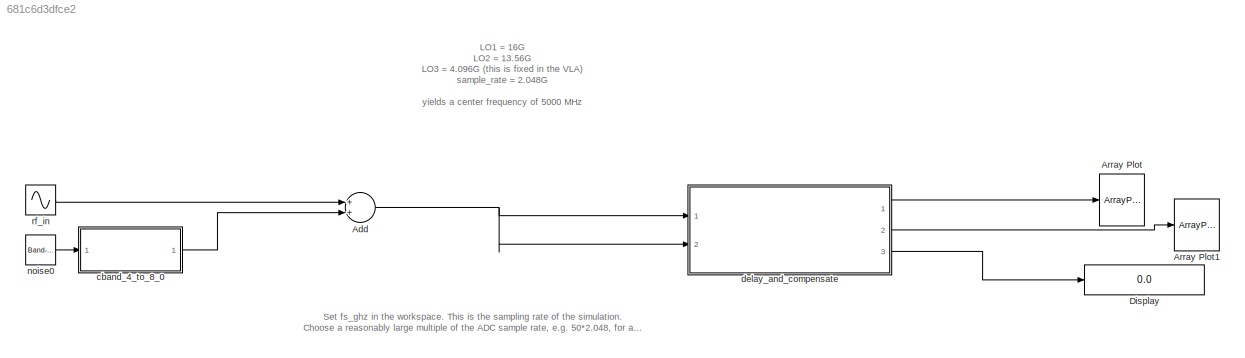
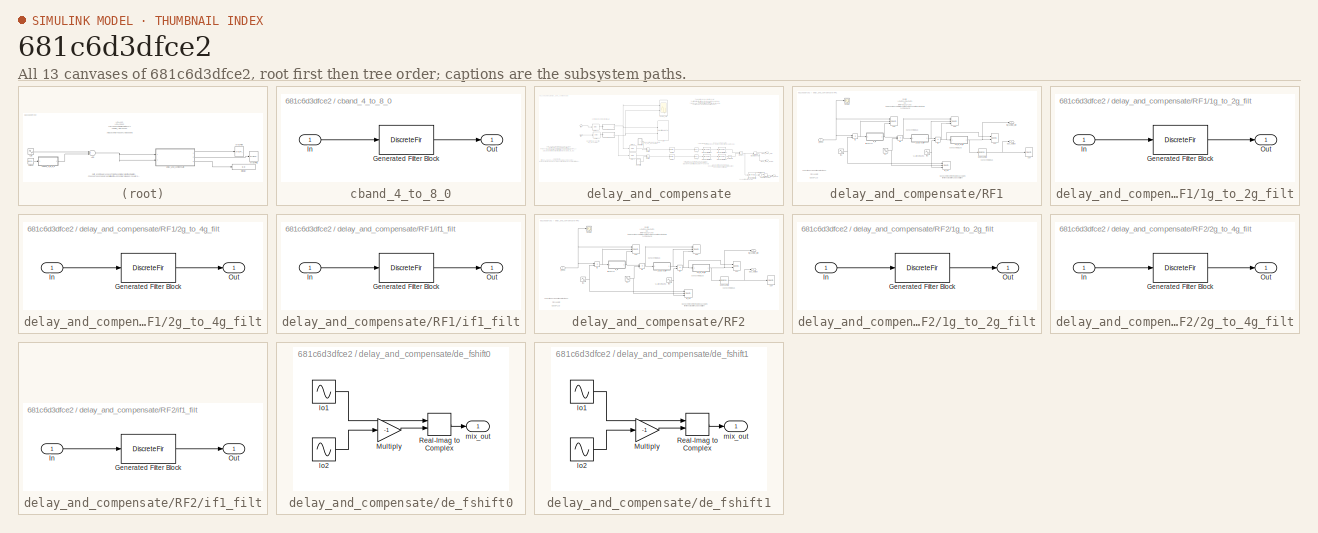
[diagram: thumbnail index - all 13 canvases of the model, root first then tree order]
MODEL slx_681c6d3dfce2
KIND model
CONFIG AbsTol = auto
CONFIG EnableMultiTasking = off
CONFIG FixedStep = auto
CONFIG MaxStep = auto
CONFIG MinStep = auto
CONFIG RelTol = 1e-3
CONFIG SampleTimeConstraint = Unconstrained
CONFIG Solver = VariableStepAuto
CONFIG SolverName = VariableStepAuto
CONFIG StartTime = 0.0
CONFIG StopTime = 500000 / (fs_ghz * 1e9)
BLOCK [Sum] Add
  InputSameDT = off
  OutDataTypeStr = Inherit: Inherit via internal rule
  Ports = [2, 1]
  SaturateOnIntegerOverflow = off
BLOCK [ArrayPlot] Array Plot
  Ports = [1]
  ScopeSpecificationString = dsp.scopes.ArrayPlotBlockSpecification('CurrentConfiguration', extmgr.ConfigurationSet(extmgr.Configuration('Core','General UI',true),extmgr.Configuration('Core','Source UI',true),extmgr.Configuration('Sources','WiredSimulink',true),extmgr.Configuration('Sources','File',false),extmgr.Configuration('Sources','Workspace',false),extmgr.Configuration('Sources','Streaming',false),extmgr.Configuration('...<+2307ch>
BLOCK [ArrayPlot] Array Plot1
  Ports = [1]
  ScopeSpecificationString = dsp.scopes.ArrayPlotBlockSpecification('CurrentConfiguration', extmgr.ConfigurationSet(extmgr.Configuration('Core','General UI',true),extmgr.Configuration('Core','Source UI',true),extmgr.Configuration('Sources','WiredSimulink',true),extmgr.Configuration('Sources','File',false),extmgr.Configuration('Sources','Workspace',false),extmgr.Configuration('Sources','Streaming',false),extmgr.Configuration('...<+2087ch>
BLOCK [Display] Display
  Decimation = 1
  Ports = [1]
BLOCK [SubSystem] cband_4_to_8_0
  CopyFcn = fdesignblkfcn(gcbh, {'CopyFcn'});
  DialogController = fdesignblkfcn
  InitFcn = fdesignblkfcn(gcbh, {'InitFcn'});
  Ports = [1, 1]
  RequestExecContextInheritance = off
  UserDataPersistent = on
BLOCK [DiscreteFir] cband_4_to_8_0/Generated Filter Block
  Coefficients = [-9.40094334225731145e-05 -6.57335329822327186e-05 1.32894792001724368e-05 0.000134559058517748424 0.000277936305882253612 0.000414699232132098247 0.000512636064975988365 0.000542480818344473047 0.000484608636541211375 0.000334635227065140138 0.000106521266150224518 -0.00016793806988651982 -0.000443730870127158567 -0.000670944573551014874 -0.000805375180787633121 -0.000819188075913799977 -0.000708...<+4321ch>
  InputPortMap = u0
  InputProcessing = Columns as channels (frame based)
  OutputPortMap = o0
  Ports = [1, 1]
  Tag = BlockMethodSubSystem
BLOCK [Inport] cband_4_to_8_0/In
  IconDisplay = Port number
BLOCK [Outport] cband_4_to_8_0/Out
  IconDisplay = Port number
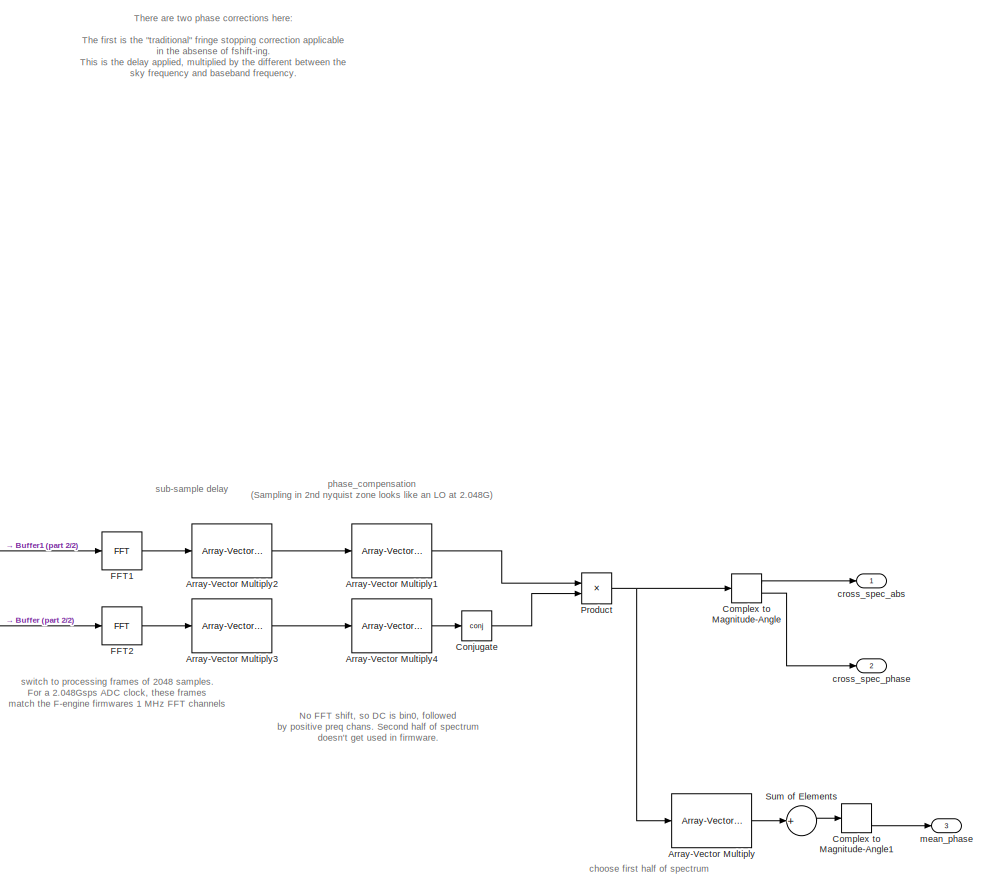
[diagram: delay_and_compensate - part 1/2, right side, full height]
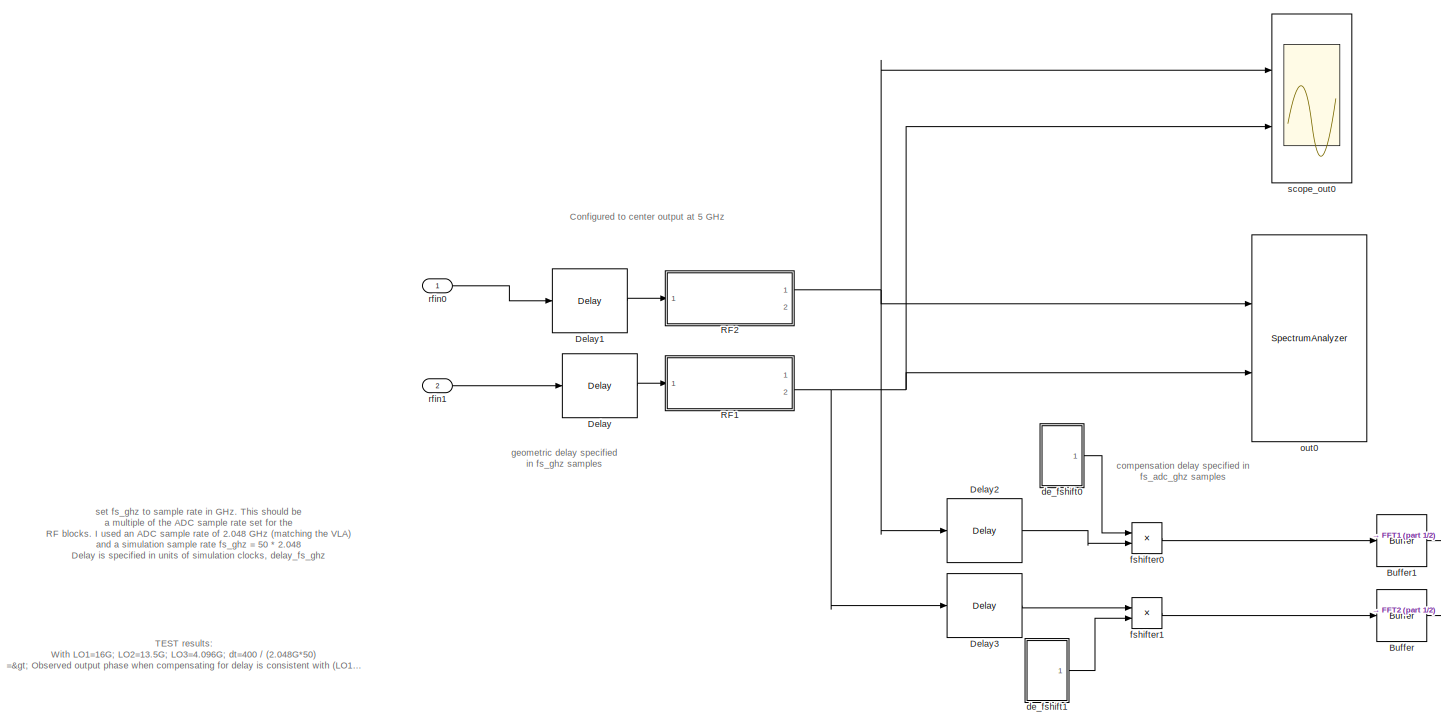
[diagram: delay_and_compensate - part 2/2, left side, full height]
BLOCK [SubSystem] delay_and_compensate
  Ports = [2, 3]
  RequestExecContextInheritance = off
BLOCK [Reference] delay_and_compensate/Array-Vector Multiply  REF=dspmtrx3/Array-Vector
Multiply
  Ports = [1, 1]
  SourceBlock = dspmtrx3/Array-Vector\nMultiply
  SourceProductBaseCode = DS
  SourceProductName = DSP System Toolbox
  SourceType = Array-Vector Multiply
BLOCK [Reference] delay_and_compensate/Array-Vector Multiply1  REF=dspmtrx3/Array-Vector
Multiply
  Ports = [1, 1]
  SourceBlock = dspmtrx3/Array-Vector\nMultiply
  SourceProductBaseCode = DS
  SourceProductName = DSP System Toolbox
  SourceType = Array-Vector Multiply
BLOCK [Reference] delay_and_compensate/Array-Vector Multiply2  REF=dspmtrx3/Array-Vector
Multiply
  Ports = [1, 1]
  SourceBlock = dspmtrx3/Array-Vector\nMultiply
  SourceProductBaseCode = DS
  SourceProductName = DSP System Toolbox
  SourceType = Array-Vector Multiply
BLOCK [Reference] delay_and_compensate/Array-Vector Multiply3  REF=dspmtrx3/Array-Vector
Multiply
  Ports = [1, 1]
  SourceBlock = dspmtrx3/Array-Vector\nMultiply
  SourceProductBaseCode = DS
  SourceProductName = DSP System Toolbox
  SourceType = Array-Vector Multiply
BLOCK [Reference] delay_and_compensate/Array-Vector Multiply4  REF=dspmtrx3/Array-Vector
Multiply
  Ports = [1, 1]
  SourceBlock = dspmtrx3/Array-Vector\nMultiply
  SourceProductBaseCode = DS
  SourceProductName = DSP System Toolbox
  SourceType = Array-Vector Multiply
BLOCK [Buffer] delay_and_compensate/Buffer
  N = 2048
  OutputFrames = off
BLOCK [Buffer] delay_and_compensate/Buffer1
  N = 2048
  OutputFrames = off
BLOCK [ComplexToMagnitudeAngle] delay_and_compensate/Complex to Magnitude-Angle
  Ports = [1, 2]
BLOCK [ComplexToMagnitudeAngle] delay_and_compensate/Complex to Magnitude-Angle1
  Ports = [1, 2]
BLOCK [Math] delay_and_compensate/Conjugate
  Operator = conj
  Ports = [1, 1]
  RndMeth = Zero
BLOCK [Delay] delay_and_compensate/Delay
  DelayLength = rf_delay1_fs_ghz
  InitialCondition = 0
  InputPortMap = u0
  Ports = [1, 1]
BLOCK [Delay] delay_and_compensate/Delay1
  DelayLength = rf_delay0_fs_ghz
  InitialCondition = 0
  InputPortMap = u0
  Ports = [1, 1]
BLOCK [Delay] delay_and_compensate/Delay2
  DelayLength = coarse_delay0
  InitialCondition = 0
  InputPortMap = u0
  Ports = [1, 1]
BLOCK [Delay] delay_and_compensate/Delay3
  DelayLength = coarse_delay1
  InitialCondition = 0
  InputPortMap = u0
  Ports = [1, 1]
BLOCK [Reference] delay_and_compensate/FFT1  REF=dspxfrm3/FFT
  Ports = [1, 1]
  SourceBlock = dspxfrm3/FFT
  SourceProductBaseCode = DS
  SourceProductName = DSP System Toolbox
  SourceType = FFT
BLOCK [Reference] delay_and_compensate/FFT2  REF=dspxfrm3/FFT
  Ports = [1, 1]
  SourceBlock = dspxfrm3/FFT
  SourceProductBaseCode = DS
  SourceProductName = DSP System Toolbox
  SourceType = FFT
BLOCK [Product] delay_and_compensate/Product
  InputSameDT = off
  OutDataTypeStr = Inherit: Inherit via internal rule
  Ports = [2, 1]
  RndMeth = Floor
  SaturateOnIntegerOverflow = off
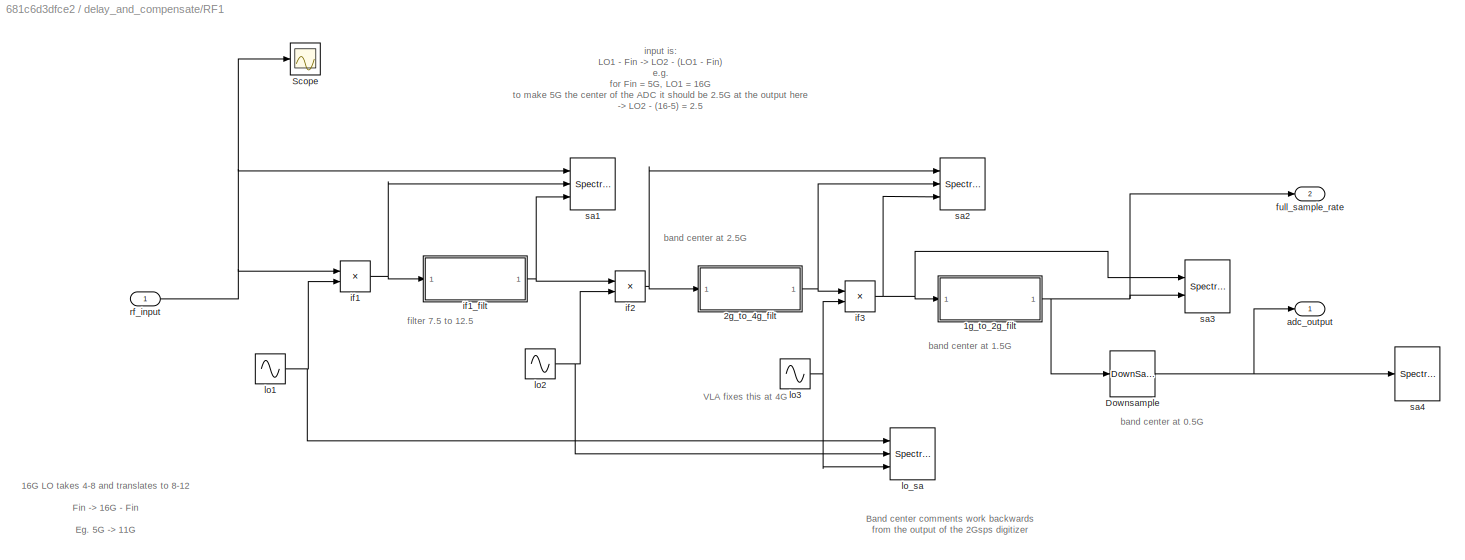
BLOCK [SubSystem] delay_and_compensate/RF1
  Ports = [1, 2]
  RequestExecContextInheritance = off
BLOCK [SubSystem] delay_and_compensate/RF1/1g_to_2g_filt
  CopyFcn = fdesignblkfcn(gcbh, {'CopyFcn'});
  DialogController = fdesignblkfcn
  InitFcn = fdesignblkfcn(gcbh, {'InitFcn'});
  Ports = [1, 1]
  RequestExecContextInheritance = off
  UserDataPersistent = on
BLOCK [DiscreteFir] delay_and_compensate/RF1/1g_to_2g_filt/Generated Filter Block
  Coefficients = [1.01704780809032204e-05 8.00513267945117663e-06 5.63585570426750819e-06 3.08357437286688761e-06 3.7215072795178805e-07 -2.47188488010559091e-06 -5.41963823333738916e-06 -8.44018986497744443e-06 -1.15009636491456078e-05 -1.45681207425512571e-05 -1.76069739067568088e-05 -2.05824169501533862e-05 -2.34593638064728185e-05 -2.62031916145401389e-05 -2.87801820842337675e-05 -3.11579554275093182e-05 -3.33...<+60115ch>
  InputPortMap = u0
  InputProcessing = Columns as channels (frame based)
  OutputPortMap = o0
  Ports = [1, 1]
  Tag = BlockMethodSubSystem
BLOCK [Inport] delay_and_compensate/RF1/1g_to_2g_filt/In
  IconDisplay = Port number
BLOCK [Outport] delay_and_compensate/RF1/1g_to_2g_filt/Out
  IconDisplay = Port number
BLOCK [SubSystem] delay_and_compensate/RF1/2g_to_4g_filt
  CopyFcn = fdesignblkfcn(gcbh, {'CopyFcn'});
  DialogController = fdesignblkfcn
  InitFcn = fdesignblkfcn(gcbh, {'InitFcn'});
  Ports = [1, 1]
  RequestExecContextInheritance = off
  UserDataPersistent = on
BLOCK [DiscreteFir] delay_and_compensate/RF1/2g_to_4g_filt/Generated Filter Block
  Coefficients = [2.93722382866788096e-05 3.41459391652129034e-05 3.77128110868576443e-05 3.99224737036247014e-05 4.06853079430514713e-05 3.99767906724050358e-05 3.78385630665936822e-05 3.43761762884411585e-05 2.97536321530244167e-05 2.41850044819596572e-05 1.79235799255994288e-05 1.12490869892622225e-05 4.4536819092569802e-06 -2.17257546056165917e-06 -8.35599694025994471e-06 -1.38525483000206094e-05 -1.8459448475...<+59953ch>
  InputPortMap = u0
  InputProcessing = Columns as channels (frame based)
  OutputPortMap = o0
  Ports = [1, 1]
  Tag = BlockMethodSubSystem
BLOCK [Inport] delay_and_compensate/RF1/2g_to_4g_filt/In
  IconDisplay = Port number
BLOCK [Outport] delay_and_compensate/RF1/2g_to_4g_filt/Out
  IconDisplay = Port number
BLOCK [DownSample] delay_and_compensate/RF1/Downsample
  InputProcessing = Elements as channels (sample based)
  N = fs_ghz/adc_fs_ghz
  RateOptions = Allow multirate processing
BLOCK [Scope] delay_and_compensate/RF1/Scope
  Floating = off
  NumInputPorts = 1
  Ports = [1]
  ScopeSpecificationString = Simulink.scopes.TimeScopeBlockCfg('CurrentConfiguration', extmgr.ConfigurationSet(extmgr.Configuration('Core','General UI',true),extmgr.Configuration('Core','Source UI',true),extmgr.Configuration('Sources','WiredSimulink',true,'DataLoggingLimitDataPoints',true),extmgr.Configuration('Visuals','Time Domain',true,'SerializedDisplays',{struct('MinYLimReal','-364.50522','MaxYLimReal','370.61907','YLabe...<+1476ch>
BLOCK [Outport] delay_and_compensate/RF1/adc_output
  IconDisplay = Port number
BLOCK [Outport] delay_and_compensate/RF1/full_sample_rate
  IconDisplay = Port number
  Port = 2
BLOCK [Product] delay_and_compensate/RF1/if1
  InputSameDT = off
  OutDataTypeStr = Inherit: Inherit via internal rule
  Ports = [2, 1]
  RndMeth = Floor
  SaturateOnIntegerOverflow = off
BLOCK [SubSystem] delay_and_compensate/RF1/if1_filt
  CopyFcn = fdesignblkfcn(gcbh, {'CopyFcn'});
  DialogController = fdesignblkfcn
  InitFcn = fdesignblkfcn(gcbh, {'InitFcn'});
  Ports = [1, 1]
  RequestExecContextInheritance = off
  UserDataPersistent = on
BLOCK [DiscreteFir] delay_and_compensate/RF1/if1_filt/Generated Filter Block
  Coefficients = [3.4793427262309392e-05 5.44930009021886444e-05 7.67230161640516311e-06 -4.90795005220614759e-05 -5.00251028970550559e-05 3.70846460305349548e-05 0.000185516672775070751 0.000317032928598762903 0.000341105037848429924 0.000206892118281761336 -5.9982989554209261e-05 -0.00035835848219169399 -0.000554209791067096871 -0.000546424234637173838 -0.000322177302977984053 2.93739649481302108e-05 0.000356381...<+5519ch>
  InputPortMap = u0
  InputProcessing = Columns as channels (frame based)
  OutputPortMap = o0
  Ports = [1, 1]
  Tag = BlockMethodSubSystem
BLOCK [Inport] delay_and_compensate/RF1/if1_filt/In
  IconDisplay = Port number
BLOCK [Outport] delay_and_compensate/RF1/if1_filt/Out
  IconDisplay = Port number
BLOCK [Product] delay_and_compensate/RF1/if2
  InputSameDT = off
  OutDataTypeStr = Inherit: Inherit via internal rule
  Ports = [2, 1]
  RndMeth = Floor
  SaturateOnIntegerOverflow = off
BLOCK [Product] delay_and_compensate/RF1/if3
  InputSameDT = off
  OutDataTypeStr = Inherit: Inherit via internal rule
  Ports = [2, 1]
  RndMeth = Floor
  SaturateOnIntegerOverflow = off
BLOCK [Sin] delay_and_compensate/RF1/lo1
  Frequency = lo1_ghz * 1e9 * 2 * pi
  Ports = [0, 1]
  SampleTime = 1/(fs_ghz * 1e9)
BLOCK [Sin] delay_and_compensate/RF1/lo2
  Frequency = (lo2_ghz*1e9 + fshift_hz) * 2 * pi
  Ports = [0, 1]
  SampleTime = 1/(fs_ghz*1e9)
BLOCK [Sin] delay_and_compensate/RF1/lo3
  Frequency = (lo3_ghz * 1e9) * 2 * pi
  Ports = [0, 1]
  SampleTime = 1/(fs_ghz * 1e9)
BLOCK [SpectrumAnalyzer] delay_and_compensate/RF1/lo_sa
  NumInputPorts = 3
  Ports = [3]
  ScopeSpecificationString = spbscopes.SpectrumAnalyzerBlockCfg('CurrentConfiguration', extmgr.ConfigurationSet(extmgr.Configuration('Core','General UI',true),extmgr.Configuration('Core','Source UI',true),extmgr.Configuration('Sources','WiredSimulink',true),extmgr.Configuration('Visuals','Spectrum',true,'AxesProperties',struct('Color',{[0 0 0],[0 0 0]},'XColor',{[0.686274509803922 0.686274509803922 0.686274509803922],[0.68627...<+2114ch>
BLOCK [Inport] delay_and_compensate/RF1/rf_input
  IconDisplay = Port number
BLOCK [SpectrumAnalyzer] delay_and_compensate/RF1/sa1
  NumInputPorts = 3
  Ports = [3]
  ScopeSpecificationString = spbscopes.SpectrumAnalyzerBlockCfg('CurrentConfiguration', extmgr.ConfigurationSet(extmgr.Configuration('Core','General UI',true),extmgr.Configuration('Core','Source UI',true),extmgr.Configuration('Sources','WiredSimulink',true),extmgr.Configuration('Visuals','Spectrum',true,'AxesProperties',struct('Color',{[0 0 0],[0 0 0]},'XColor',{[0.686274509803922 0.686274509803922 0.686274509803922],[0.68627...<+2627ch>
BLOCK [SpectrumAnalyzer] delay_and_compensate/RF1/sa2
  NumInputPorts = 3
  Ports = [3]
  ScopeSpecificationString = spbscopes.SpectrumAnalyzerBlockCfg('CurrentConfiguration', extmgr.ConfigurationSet(extmgr.Configuration('Core','General UI',true),extmgr.Configuration('Core','Source UI',true),extmgr.Configuration('Sources','WiredSimulink',true),extmgr.Configuration('Visuals','Spectrum',true,'AxesProperties',struct('Color',{[0 0 0],[0 0 0]},'XColor',{[0.686274509803922 0.686274509803922 0.686274509803922],[0.68627...<+3116ch>
BLOCK [SpectrumAnalyzer] delay_and_compensate/RF1/sa3
  NumInputPorts = 2
  Ports = [2]
  ScopeSpecificationString = spbscopes.SpectrumAnalyzerBlockCfg('CurrentConfiguration', extmgr.ConfigurationSet(extmgr.Configuration('Core','General UI',true),extmgr.Configuration('Core','Source UI',true),extmgr.Configuration('Sources','WiredSimulink',true),extmgr.Configuration('Visuals','Spectrum',true,'AxesProperties',struct('Color',{[0 0 0],[0 0 0]},'XColor',{[0.686274509803922 0.686274509803922 0.686274509803922],[0.68627...<+2526ch>
BLOCK [SpectrumAnalyzer] delay_and_compensate/RF1/sa4
  Ports = [1]
  ScopeSpecificationString = spbscopes.SpectrumAnalyzerBlockCfg('CurrentConfiguration', extmgr.ConfigurationSet(extmgr.Configuration('Core','General UI',true),extmgr.Configuration('Core','Source UI',true),extmgr.Configuration('Sources','WiredSimulink',true),extmgr.Configuration('Visuals','Spectrum',true,'AxesProperties',struct('Color',{[0 0 0],[0 0 0]},'XColor',{[0.686274509803922 0.686274509803922 0.686274509803922],[0.68627...<+2414ch>
BLOCK [SubSystem] delay_and_compensate/RF2
  Ports = [1, 2]
  RequestExecContextInheritance = off
BLOCK [SubSystem] delay_and_compensate/RF2/1g_to_2g_filt
  CopyFcn = fdesignblkfcn(gcbh, {'CopyFcn'});
  DialogController = fdesignblkfcn
  InitFcn = fdesignblkfcn(gcbh, {'InitFcn'});
  Ports = [1, 1]
  RequestExecContextInheritance = off
  UserDataPersistent = on
BLOCK [DiscreteFir] delay_and_compensate/RF2/1g_to_2g_filt/Generated Filter Block
  Coefficients = [1.01704780809032204e-05 8.00513267945117663e-06 5.63585570426750819e-06 3.08357437286688761e-06 3.7215072795178805e-07 -2.47188488010559091e-06 -5.41963823333738916e-06 -8.44018986497744443e-06 -1.15009636491456078e-05 -1.45681207425512571e-05 -1.76069739067568088e-05 -2.05824169501533862e-05 -2.34593638064728185e-05 -2.62031916145401389e-05 -2.87801820842337675e-05 -3.11579554275093182e-05 -3.33...<+60115ch>
  InputPortMap = u0
  InputProcessing = Columns as channels (frame based)
  OutputPortMap = o0
  Ports = [1, 1]
  Tag = BlockMethodSubSystem
BLOCK [Inport] delay_and_compensate/RF2/1g_to_2g_filt/In
  IconDisplay = Port number
BLOCK [Outport] delay_and_compensate/RF2/1g_to_2g_filt/Out
  IconDisplay = Port number
BLOCK [SubSystem] delay_and_compensate/RF2/2g_to_4g_filt
  CopyFcn = fdesignblkfcn(gcbh, {'CopyFcn'});
  DialogController = fdesignblkfcn
  InitFcn = fdesignblkfcn(gcbh, {'InitFcn'});
  Ports = [1, 1]
  RequestExecContextInheritance = off
  UserDataPersistent = on
BLOCK [DiscreteFir] delay_and_compensate/RF2/2g_to_4g_filt/Generated Filter Block
  Coefficients = [2.93722382866788096e-05 3.41459391652129034e-05 3.77128110868576443e-05 3.99224737036247014e-05 4.06853079430514713e-05 3.99767906724050358e-05 3.78385630665936822e-05 3.43761762884411585e-05 2.97536321530244167e-05 2.41850044819596572e-05 1.79235799255994288e-05 1.12490869892622225e-05 4.4536819092569802e-06 -2.17257546056165917e-06 -8.35599694025994471e-06 -1.38525483000206094e-05 -1.8459448475...<+59953ch>
  InputPortMap = u0
  InputProcessing = Columns as channels (frame based)
  OutputPortMap = o0
  Ports = [1, 1]
  Tag = BlockMethodSubSystem
BLOCK [Inport] delay_and_compensate/RF2/2g_to_4g_filt/In
  IconDisplay = Port number
BLOCK [Outport] delay_and_compensate/RF2/2g_to_4g_filt/Out
  IconDisplay = Port number
BLOCK [DownSample] delay_and_compensate/RF2/Downsample
  InputProcessing = Elements as channels (sample based)
  N = fs_ghz/adc_fs_ghz
  RateOptions = Allow multirate processing
BLOCK [Scope] delay_and_compensate/RF2/Scope
  Floating = off
  NumInputPorts = 1
  Ports = [1]
  ScopeSpecificationString = Simulink.scopes.TimeScopeBlockCfg('CurrentConfiguration', extmgr.ConfigurationSet(extmgr.Configuration('Core','General UI',true),extmgr.Configuration('Core','Source UI',true),extmgr.Configuration('Sources','WiredSimulink',true,'DataLoggingLimitDataPoints',true),extmgr.Configuration('Visuals','Time Domain',true,'SerializedDisplays',{struct('MinYLimReal','-364.50522','MaxYLimReal','370.61907','YLabe...<+1476ch>
BLOCK [Outport] delay_and_compensate/RF2/adc_output
  IconDisplay = Port number
BLOCK [Outport] delay_and_compensate/RF2/full_sample_rate
  IconDisplay = Port number
  Port = 2
BLOCK [Product] delay_and_compensate/RF2/if1
  InputSameDT = off
  OutDataTypeStr = Inherit: Inherit via internal rule
  Ports = [2, 1]
  RndMeth = Floor
  SaturateOnIntegerOverflow = off
BLOCK [SubSystem] delay_and_compensate/RF2/if1_filt
  CopyFcn = fdesignblkfcn(gcbh, {'CopyFcn'});
  DialogController = fdesignblkfcn
  InitFcn = fdesignblkfcn(gcbh, {'InitFcn'});
  Ports = [1, 1]
  RequestExecContextInheritance = off
  UserDataPersistent = on
BLOCK [DiscreteFir] delay_and_compensate/RF2/if1_filt/Generated Filter Block
  Coefficients = [3.4793427262309392e-05 5.44930009021886444e-05 7.67230161640516311e-06 -4.90795005220614759e-05 -5.00251028970550559e-05 3.70846460305349548e-05 0.000185516672775070751 0.000317032928598762903 0.000341105037848429924 0.000206892118281761336 -5.9982989554209261e-05 -0.00035835848219169399 -0.000554209791067096871 -0.000546424234637173838 -0.000322177302977984053 2.93739649481302108e-05 0.000356381...<+5519ch>
  InputPortMap = u0
  InputProcessing = Columns as channels (frame based)
  OutputPortMap = o0
  Ports = [1, 1]
  Tag = BlockMethodSubSystem
BLOCK [Inport] delay_and_compensate/RF2/if1_filt/In
  IconDisplay = Port number
BLOCK [Outport] delay_and_compensate/RF2/if1_filt/Out
  IconDisplay = Port number
BLOCK [Product] delay_and_compensate/RF2/if2
  InputSameDT = off
  OutDataTypeStr = Inherit: Inherit via internal rule
  Ports = [2, 1]
  RndMeth = Floor
  SaturateOnIntegerOverflow = off
BLOCK [Product] delay_and_compensate/RF2/if3
  InputSameDT = off
  OutDataTypeStr = Inherit: Inherit via internal rule
  Ports = [2, 1]
  RndMeth = Floor
  SaturateOnIntegerOverflow = off
BLOCK [Sin] delay_and_compensate/RF2/lo1
  Frequency = lo1_ghz * 1e9 * 2 * pi
  Ports = [0, 1]
  SampleTime = 1/(fs_ghz * 1e9)
BLOCK [Sin] delay_and_compensate/RF2/lo2
  Frequency = (lo2_ghz*1e9 + fshift_hz) * 2 * pi
  Ports = [0, 1]
  SampleTime = 1/(fs_ghz*1e9)
BLOCK [Sin] delay_and_compensate/RF2/lo3
  Frequency = (lo3_ghz * 1e9) * 2 * pi
  Ports = [0, 1]
  SampleTime = 1/(fs_ghz * 1e9)
BLOCK [SpectrumAnalyzer] delay_and_compensate/RF2/lo_sa
  NumInputPorts = 3
  Ports = [3]
  ScopeSpecificationString = spbscopes.SpectrumAnalyzerBlockCfg('CurrentConfiguration', extmgr.ConfigurationSet(extmgr.Configuration('Core','General UI',true),extmgr.Configuration('Core','Source UI',true),extmgr.Configuration('Sources','WiredSimulink',true),extmgr.Configuration('Visuals','Spectrum',true,'AxesProperties',struct('Color',{[0 0 0],[0 0 0]},'XColor',{[0.686274509803922 0.686274509803922 0.686274509803922],[0.68627...<+2114ch>
BLOCK [Inport] delay_and_compensate/RF2/rf_input
  IconDisplay = Port number
BLOCK [SpectrumAnalyzer] delay_and_compensate/RF2/sa1
  NumInputPorts = 3
  Ports = [3]
  ScopeSpecificationString = spbscopes.SpectrumAnalyzerBlockCfg('CurrentConfiguration', extmgr.ConfigurationSet(extmgr.Configuration('Core','General UI',true),extmgr.Configuration('Core','Source UI',true),extmgr.Configuration('Sources','WiredSimulink',true),extmgr.Configuration('Visuals','Spectrum',true,'AxesProperties',struct('Color',{[0 0 0],[0 0 0]},'XColor',{[0.686274509803922 0.686274509803922 0.686274509803922],[0.68627...<+2627ch>
BLOCK [SpectrumAnalyzer] delay_and_compensate/RF2/sa2
  NumInputPorts = 3
  Ports = [3]
  ScopeSpecificationString = spbscopes.SpectrumAnalyzerBlockCfg('CurrentConfiguration', extmgr.ConfigurationSet(extmgr.Configuration('Core','General UI',true),extmgr.Configuration('Core','Source UI',true),extmgr.Configuration('Sources','WiredSimulink',true),extmgr.Configuration('Visuals','Spectrum',true,'AxesProperties',struct('Color',{[0 0 0],[0 0 0]},'XColor',{[0.686274509803922 0.686274509803922 0.686274509803922],[0.68627...<+3116ch>
BLOCK [SpectrumAnalyzer] delay_and_compensate/RF2/sa3
  NumInputPorts = 2
  Ports = [2]
  ScopeSpecificationString = spbscopes.SpectrumAnalyzerBlockCfg('CurrentConfiguration', extmgr.ConfigurationSet(extmgr.Configuration('Core','General UI',true),extmgr.Configuration('Core','Source UI',true),extmgr.Configuration('Sources','WiredSimulink',true),extmgr.Configuration('Visuals','Spectrum',true,'AxesProperties',struct('Color',{[0 0 0],[0 0 0]},'XColor',{[0.686274509803922 0.686274509803922 0.686274509803922],[0.68627...<+2526ch>
BLOCK [SpectrumAnalyzer] delay_and_compensate/RF2/sa4
  Ports = [1]
  ScopeSpecificationString = spbscopes.SpectrumAnalyzerBlockCfg('CurrentConfiguration', extmgr.ConfigurationSet(extmgr.Configuration('Core','General UI',true),extmgr.Configuration('Core','Source UI',true),extmgr.Configuration('Sources','WiredSimulink',true),extmgr.Configuration('Visuals','Spectrum',true,'AxesProperties',struct('Color',{[0 0 0],[0 0 0]},'XColor',{[0.686274509803922 0.686274509803922 0.686274509803922],[0.68627...<+2414ch>
BLOCK [Sum] delay_and_compensate/Sum of Elements
  InputSameDT = off
  Inputs = +
  OutDataTypeStr = Inherit: Inherit via internal rule
  Ports = [1, 1]
  SaturateOnIntegerOverflow = off
BLOCK [Outport] delay_and_compensate/cross_spec_abs
  IconDisplay = Port number
BLOCK [Outport] delay_and_compensate/cross_spec_phase
  IconDisplay = Port number
  Port = 2
BLOCK [SubSystem] delay_and_compensate/de_fshift0
  Ports = [0, 1]
  RequestExecContextInheritance = off
BLOCK [Gain] delay_and_compensate/de_fshift0/Multiply
  Gain = -1
  OutDataTypeStr = Inherit: Inherit via internal rule
  ParamDataTypeStr = Inherit: Inherit via internal rule
  SaturateOnIntegerOverflow = off
BLOCK [RealImagToComplex] delay_and_compensate/de_fshift0/Real-Imag to Complex
  Ports = [2, 1]
BLOCK [Sin] delay_and_compensate/de_fshift0/lo1
  Frequency = ( fshift_hz) * 2 * pi
  Phase = pi/2
  Ports = [0, 1]
  SampleTime = 1/(adc_ghz*1e9)
BLOCK [Sin] delay_and_compensate/de_fshift0/lo2
  Frequency = ( fshift_hz) * 2 * pi
  Ports = [0, 1]
  SampleTime = 1/(adc_ghz*1e9)
BLOCK [Outport] delay_and_compensate/de_fshift0/mix_out
  IconDisplay = Port number
BLOCK [SubSystem] delay_and_compensate/de_fshift1
  Ports = [0, 1]
  RequestExecContextInheritance = off
BLOCK [Gain] delay_and_compensate/de_fshift1/Multiply
  Gain = -1
  OutDataTypeStr = Inherit: Inherit via internal rule
  ParamDataTypeStr = Inherit: Inherit via internal rule
  SaturateOnIntegerOverflow = off
BLOCK [RealImagToComplex] delay_and_compensate/de_fshift1/Real-Imag to Complex
  Ports = [2, 1]
BLOCK [Sin] delay_and_compensate/de_fshift1/lo1
  Frequency = ( fshift_hz) * 2 * pi
  Phase = pi/2
  Ports = [0, 1]
  SampleTime = 1/(adc_ghz*1e9)
BLOCK [Sin] delay_and_compensate/de_fshift1/lo2
  Frequency = ( fshift_hz) * 2 * pi
  Ports = [0, 1]
  SampleTime = 1/(adc_ghz*1e9)
BLOCK [Outport] delay_and_compensate/de_fshift1/mix_out
  IconDisplay = Port number
BLOCK [Product] delay_and_compensate/fshifter0
  InputSameDT = off
  OutDataTypeStr = Inherit: Inherit via internal rule
  Ports = [2, 1]
  RndMeth = Floor
  SaturateOnIntegerOverflow = off
BLOCK [Product] delay_and_compensate/fshifter1
  InputSameDT = off
  OutDataTypeStr = Inherit: Inherit via internal rule
  Ports = [2, 1]
  RndMeth = Floor
  SaturateOnIntegerOverflow = off
BLOCK [Outport] delay_and_compensate/mean_phase
  IconDisplay = Port number
  Port = 3
BLOCK [SpectrumAnalyzer] delay_and_compensate/out0
  NumInputPorts = 2
  Ports = [2]
  ScopeSpecificationString = spbscopes.SpectrumAnalyzerBlockCfg('CurrentConfiguration', extmgr.ConfigurationSet(extmgr.Configuration('Core','General UI',true),extmgr.Configuration('Core','Source UI',true),extmgr.Configuration('Sources','WiredSimulink',true),extmgr.Configuration('Sources','File',false),extmgr.Configuration('Sources','Workspace',false),extmgr.Configuration('Sources','Streaming',false),extmgr.Configuration('Sour...<+3215ch>
BLOCK [Inport] delay_and_compensate/rfin0
  IconDisplay = Port number
BLOCK [Inport] delay_and_compensate/rfin1
  IconDisplay = Port number
  Port = 2
BLOCK [Scope] delay_and_compensate/scope_out0
  Commented = on
  Floating = off
  NumInputPorts = 2
  Ports = [2]
  ScopeSpecificationString = Simulink.scopes.TimeScopeBlockCfg('CurrentConfiguration', extmgr.ConfigurationSet(extmgr.Configuration('Core','General UI',true),extmgr.Configuration('Core','Source UI',true),extmgr.Configuration('Sources','WiredSimulink',true,'DataLoggingVariableName','ScopeData1','DataLoggingLimitDataPoints',true,'DataLoggingMaxPoints','2000'),extmgr.Configuration('Visuals','Time Domain',true,'SerializedDisplays...<+1509ch>
BLOCK [Reference] noise0  REF=simulink/Sources/Band-Limited
White Noise
  Ports = [0, 1]
  SourceBlock = simulink/Sources/Band-Limited\nWhite Noise
  SourceProductBaseCode = SL
  SourceProductName = Simulink
  SourceType = Band-Limited White Noise.
BLOCK [Sin] rf_in
  Amplitude = 100
  Frequency = 5e9 * 2 * pi
  Ports = [0, 1]
  SampleTime = 1/(fs_ghz*1e9)
ANNOTATION (root): LO1 = 16G LO2 = 13.56G LO3 = 4.096G (this is fixed in the VLA) sample_rate = 2.048G yields a center frequency of 5000 MHz
ANNOTATION (root): Set fs_ghz in the workspace. This is the sampling rate of the simulation. Choose a reasonably large multiple of the ADC sample rate, e.g. 50*2.048, for a sample rate of 2.048 Gsps
ANNOTATION delay_and_compensate: set fs_ghz to sample rate in GHz. This should be a multiple of the ADC sample rate set for the RF blocks. I used an ADC sample rate of 2.048 GHz (matching the VLA) and a simulation sample rate fs_ghz = 50 * 2.048 Delay is specified in units of simulation clocks, delay_fs_ghz
ANNOTATION delay_and_compensate: TEST results: With LO1=16G; LO2=13.5G; LO3=4.096G; dt=400 / (2.048G*50) => Observed output phase when compensating for delay is consistent with (LO1-LO2+LO3)*dt
ANNOTATION delay_and_compensate: Configured to center output at 5 GHz
ANNOTATION delay_and_compensate: No FFT shift, so DC is bin0, followed by positive preq chans. Second half of spectrum doesn't get used in firmware.
ANNOTATION delay_and_compensate: There are two phase corrections here: The first is the "traditional" fringe stopping correction applicable in the absense of fshift-ing. This is the delay applied, multiplied by the different between the sky frequency and baseband frequency. I.e. 2*pi*df*delay = 2*pi*(-LO1 + LO2 - LO3 +2.048G)*delay The last term in the LO expansion represents the fact that we sample in the second Nyquist zone, wh...<+948ch>
ANNOTATION delay_and_compensate: choose first half of spectrum
ANNOTATION delay_and_compensate: compensation delay specified in fs_adc_ghz samples
ANNOTATION delay_and_compensate: geometric delay specified in fs_ghz samples
ANNOTATION delay_and_compensate: phase_compensation (Sampling in 2nd nyquist zone looks like an LO at 2.048G)
ANNOTATION delay_and_compensate: sub-sample delay
ANNOTATION delay_and_compensate: switch to processing frames of 2048 samples. For a 2.048Gsps ADC clock, these frames match the F-engine firmwares 1 MHz FFT channels
ANNOTATION delay_and_compensate/RF1: 16G LO takes 4-8 and translates to 8-12 Fin -> 16G - Fin Eg. 5G -> 11G
ANNOTATION delay_and_compensate/RF1: Band center comments work backwards from the output of the 2Gsps digitizer
ANNOTATION delay_and_compensate/RF1: VLA fixes this at 4G
ANNOTATION delay_and_compensate/RF1: band center at 0.5G
ANNOTATION delay_and_compensate/RF1: band center at 1.5G
ANNOTATION delay_and_compensate/RF1: band center at 2.5G
ANNOTATION delay_and_compensate/RF1: filter 7.5 to 12.5
ANNOTATION delay_and_compensate/RF1: input is: LO1 - Fin -> LO2 - (LO1 - Fin) e.g. for Fin = 5G, LO1 = 16G to make 5G the center of the ADC it should be 2.5G at the output here -> LO2 - (16-5) = 2.5 -> LO2 = 2.5 + 11 = 13.5
ANNOTATION delay_and_compensate/RF2: 16G LO takes 4-8 and translates to 8-12 Fin -> 16G - Fin Eg. 5G -> 11G
ANNOTATION delay_and_compensate/RF2: Band center comments work backwards from the output of the 2Gsps digitizer
ANNOTATION delay_and_compensate/RF2: VLA fixes this at 4G
ANNOTATION delay_and_compensate/RF2: band center at 0.5G
ANNOTATION delay_and_compensate/RF2: band center at 1.5G
ANNOTATION delay_and_compensate/RF2: band center at 2.5G
ANNOTATION delay_and_compensate/RF2: filter 7.5 to 12.5
ANNOTATION delay_and_compensate/RF2: input is: LO1 - Fin -> LO2 - (LO1 - Fin) e.g. for Fin = 5G, LO1 = 16G to make 5G the center of the ADC it should be 2.5G at the output here -> LO2 - (16-5) = 2.5 -> LO2 = 2.5 + 11 = 13.5
NET Add:1 -> delay_and_compensate:1, delay_and_compensate:2
LINE cband_4_to_8_0:1 -> Add:2
LINE delay_and_compensate/Array-Vector Multiply1:1 -> delay_and_compensate/Product:1
LINE delay_and_compensate/Array-Vector Multiply2:1 -> delay_and_compensate/Array-Vector Multiply1:1
LINE delay_and_compensate/Array-Vector Multiply3:1 -> delay_and_compensate/Array-Vector Multiply4:1
LINE delay_and_compensate/Array-Vector Multiply4:1 -> delay_and_compensate/Conjugate:1
LINE delay_and_compensate/Array-Vector Multiply:1 -> delay_and_compensate/Sum of Elements:1
LINE delay_and_compensate/Buffer1:1 -> delay_and_compensate/FFT1:1
LINE delay_and_compensate/Buffer:1 -> delay_and_compensate/FFT2:1
LINE delay_and_compensate/Complex to Magnitude-Angle1:2 -> delay_and_compensate/mean_phase:1
LINE delay_and_compensate/Complex to Magnitude-Angle:1 -> delay_and_compensate/cross_spec_abs:1
LINE delay_and_compensate/Complex to Magnitude-Angle:2 -> delay_and_compensate/cross_spec_phase:1
LINE delay_and_compensate/Conjugate:1 -> delay_and_compensate/Product:2
LINE delay_and_compensate/Delay1:1 -> delay_and_compensate/RF2:1
LINE delay_and_compensate/Delay2:1 -> delay_and_compensate/fshifter0:2
LINE delay_and_compensate/Delay3:1 -> delay_and_compensate/fshifter1:1
LINE delay_and_compensate/Delay:1 -> delay_and_compensate/RF1:1
LINE delay_and_compensate/FFT1:1 -> delay_and_compensate/Array-Vector Multiply2:1
LINE delay_and_compensate/FFT2:1 -> delay_and_compensate/Array-Vector Multiply3:1
NET delay_and_compensate/Product:1 -> delay_and_compensate/Array-Vector Multiply:1, delay_and_compensate/Complex to Magnitude-Angle:1
NET delay_and_compensate/RF1/1g_to_2g_filt:1 -> delay_and_compensate/RF1/Downsample:1, delay_and_compensate/RF1/full_sample_rate:1, delay_and_compensate/RF1/sa3:2
NET delay_and_compensate/RF1/2g_to_4g_filt:1 -> delay_and_compensate/RF1/if3:1, delay_and_compensate/RF1/sa2:2
NET delay_and_compensate/RF1/Downsample:1 -> delay_and_compensate/RF1/adc_output:1, delay_and_compensate/RF1/sa4:1
NET delay_and_compensate/RF1/if1:1 -> delay_and_compensate/RF1/if1_filt:1, delay_and_compensate/RF1/sa1:2
NET delay_and_compensate/RF1/if1_filt:1 -> delay_and_compensate/RF1/if2:1, delay_and_compensate/RF1/sa1:3
NET delay_and_compensate/RF1/if2:1 -> delay_and_compensate/RF1/2g_to_4g_filt:1, delay_and_compensate/RF1/sa2:1
NET delay_and_compensate/RF1/if3:1 -> delay_and_compensate/RF1/1g_to_2g_filt:1, delay_and_compensate/RF1/sa2:3, delay_and_compensate/RF1/sa3:1
NET delay_and_compensate/RF1/lo1:1 -> delay_and_compensate/RF1/if1:2, delay_and_compensate/RF1/lo_sa:1
NET delay_and_compensate/RF1/lo2:1 -> delay_and_compensate/RF1/if2:2, delay_and_compensate/RF1/lo_sa:2
NET delay_and_compensate/RF1/lo3:1 -> delay_and_compensate/RF1/if3:2, delay_and_compensate/RF1/lo_sa:3
NET delay_and_compensate/RF1/rf_input:1 -> delay_and_compensate/RF1/Scope:1, delay_and_compensate/RF1/if1:1, delay_and_compensate/RF1/sa1:1
NET delay_and_compensate/RF1:1 -> delay_and_compensate/Delay3:1, delay_and_compensate/out0:2, delay_and_compensate/scope_out0:2
NET delay_and_compensate/RF2/1g_to_2g_filt:1 -> delay_and_compensate/RF2/Downsample:1, delay_and_compensate/RF2/full_sample_rate:1, delay_and_compensate/RF2/sa3:2
NET delay_and_compensate/RF2/2g_to_4g_filt:1 -> delay_and_compensate/RF2/if3:1, delay_and_compensate/RF2/sa2:2
NET delay_and_compensate/RF2/Downsample:1 -> delay_and_compensate/RF2/adc_output:1, delay_and_compensate/RF2/sa4:1
NET delay_and_compensate/RF2/if1:1 -> delay_and_compensate/RF2/if1_filt:1, delay_and_compensate/RF2/sa1:2
NET delay_and_compensate/RF2/if1_filt:1 -> delay_and_compensate/RF2/if2:1, delay_and_compensate/RF2/sa1:3
NET delay_and_compensate/RF2/if2:1 -> delay_and_compensate/RF2/2g_to_4g_filt:1, delay_and_compensate/RF2/sa2:1
NET delay_and_compensate/RF2/if3:1 -> delay_and_compensate/RF2/1g_to_2g_filt:1, delay_and_compensate/RF2/sa2:3, delay_and_compensate/RF2/sa3:1
NET delay_and_compensate/RF2/lo1:1 -> delay_and_compensate/RF2/if1:2, delay_and_compensate/RF2/lo_sa:1
NET delay_and_compensate/RF2/lo2:1 -> delay_and_compensate/RF2/if2:2, delay_and_compensate/RF2/lo_sa:2
NET delay_and_compensate/RF2/lo3:1 -> delay_and_compensate/RF2/if3:2, delay_and_compensate/RF2/lo_sa:3
NET delay_and_compensate/RF2/rf_input:1 -> delay_and_compensate/RF2/Scope:1, delay_and_compensate/RF2/if1:1, delay_and_compensate/RF2/sa1:1
NET delay_and_compensate/RF2:1 -> delay_and_compensate/Delay2:1, delay_and_compensate/out0:1, delay_and_compensate/scope_out0:1
LINE delay_and_compensate/Sum of Elements:1 -> delay_and_compensate/Complex to Magnitude-Angle1:1
LINE delay_and_compensate/de_fshift0/Multiply:1 -> delay_and_compensate/de_fshift0/Real-Imag to Complex:2
LINE delay_and_compensate/de_fshift0/Real-Imag to Complex:1 -> delay_and_compensate/de_fshift0/mix_out:1
LINE delay_and_compensate/de_fshift0/lo1:1 -> delay_and_compensate/de_fshift0/Real-Imag to Complex:1
LINE delay_and_compensate/de_fshift0/lo2:1 -> delay_and_compensate/de_fshift0/Multiply:1
LINE delay_and_compensate/de_fshift0:1 -> delay_and_compensate/fshifter0:1
LINE delay_and_compensate/de_fshift1/Multiply:1 -> delay_and_compensate/de_fshift1/Real-Imag to Complex:2
LINE delay_and_compensate/de_fshift1/Real-Imag to Complex:1 -> delay_and_compensate/de_fshift1/mix_out:1
LINE delay_and_compensate/de_fshift1/lo1:1 -> delay_and_compensate/de_fshift1/Real-Imag to Complex:1
LINE delay_and_compensate/de_fshift1/lo2:1 -> delay_and_compensate/de_fshift1/Multiply:1
LINE delay_and_compensate/de_fshift1:1 -> delay_and_compensate/fshifter1:2
LINE delay_and_compensate/fshifter0:1 -> delay_and_compensate/Buffer1:1
LINE delay_and_compensate/fshifter1:1 -> delay_and_compensate/Buffer:1
LINE delay_and_compensate/rfin0:1 -> delay_and_compensate/Delay1:1
LINE delay_and_compensate/rfin1:1 -> delay_and_compensate/Delay:1
LINE delay_and_compensate:1 -> Array Plot:1
LINE delay_and_compensate:2 -> Array Plot1:1
LINE delay_and_compensate:3 -> Display:1
LINE noise0:1 -> cband_4_to_8_0:1
LINE rf_in:1 -> Add:1
note: NET lines group one-source signal fan-out (src -> all destinations, sorted); 1:1 wires keep LINE
